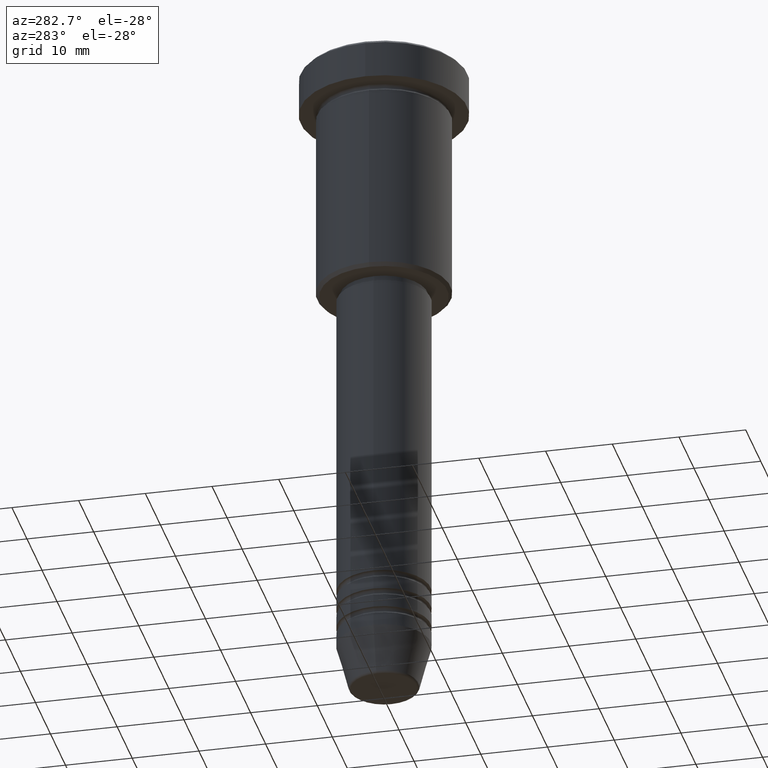
[diagram: clean part render]
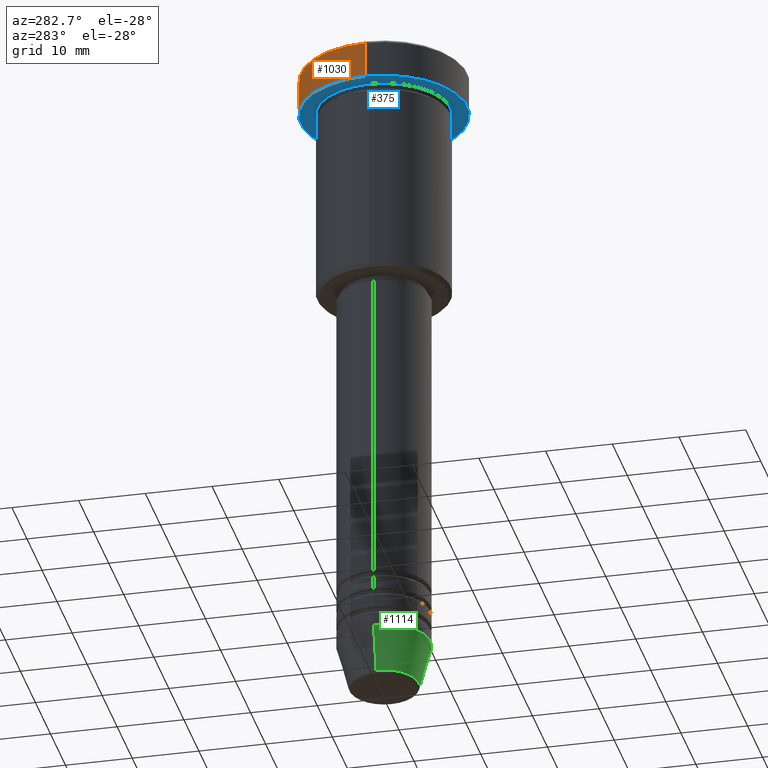
[diagram: same view with three faces highlighted in distinct colors, each labeled with its STEP entity id]
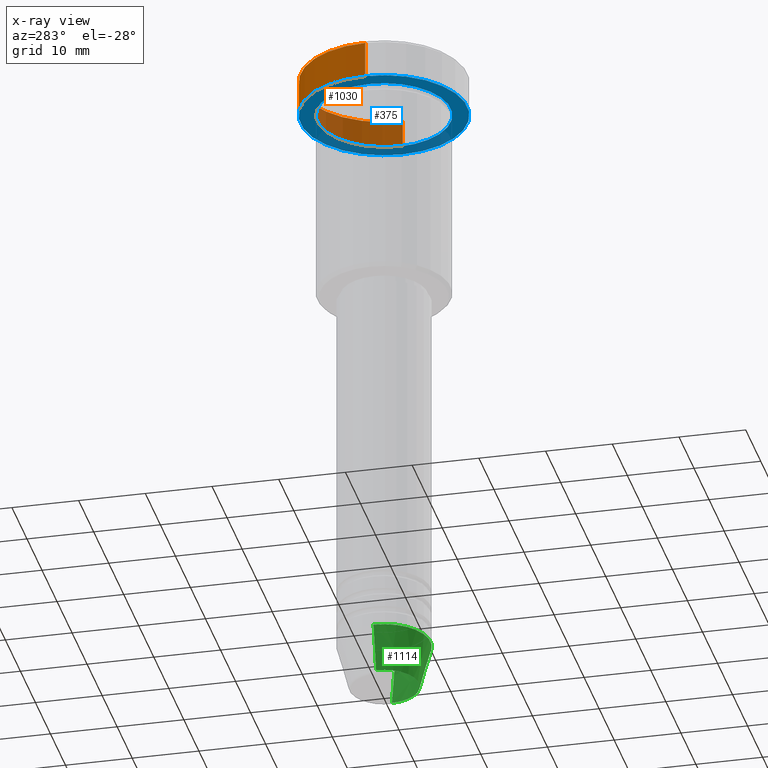
[diagram: x-ray of the same camera — body ghosted, the three highlighted faces saturated]
A machine part, auxiliary view with three faces highlighted in distinct colors.
The next image is the same camera in x-ray (body ghosted, the three faces saturated) — at least one of them is partly hidden behind the body in this view.
Their STEP definitions:

[orange] entity #1030 — the highlighted cylindrical surface (partial cylindrical patch) has radius 12.5 mm, axis along (-0, -0, 1).
#93 = CARTESIAN_POINT ( 'NONE',  ( -12.50000000000000000, 1.530808498934191521E-15, 0.000000000000000000 ) ) ;
#98 = EDGE_CURVE ( 'NONE', #290, #1017, #447, .T. ) ;
#142 = VECTOR ( 'NONE', #1110, 1000.000000000000000 ) ;
#171 = DIRECTION ( 'NONE',  ( -0.000000000000000000, -0.000000000000000000, 1.000000000000000000 ) ) ;
#186 = CARTESIAN_POINT ( 'NONE',  ( -12.50000000000000000, 1.530808498934191521E-15, -5.999999999999996447 ) ) ;
#198 = CIRCLE ( 'NONE', #254, 12.50000000000000000 ) ;
#254 = AXIS2_PLACEMENT_3D ( 'NONE', #497, #768, #319 ) ;
#268 = AXIS2_PLACEMENT_3D ( 'NONE', #1163, #1081, #510 ) ;
#281 = VECTOR ( 'NONE', #171, 1000.000000000000000 ) ;
#287 = AXIS2_PLACEMENT_3D ( 'NONE', #414, #505, #867 ) ;
#290 = VERTEX_POINT ( 'NONE', #551 ) ;
#319 = DIRECTION ( 'NONE',  ( 1.000000000000000000, 0.000000000000000000, 0.000000000000000000 ) ) ;
#392 = ORIENTED_EDGE ( 'NONE', *, *, #911, .T. ) ;
#414 = CARTESIAN_POINT ( 'NONE',  ( 0.000000000000000000, 0.000000000000000000, -5.999999999999996447 ) ) ;
#447 = LINE ( 'NONE', #892, #281 ) ;
#463 = ORIENTED_EDGE ( 'NONE', *, *, #869, .T. ) ;
#497 = CARTESIAN_POINT ( 'NONE',  ( 0.000000000000000000, 0.000000000000000000, -0.5000000000000056621 ) ) ;
#505 = DIRECTION ( 'NONE',  ( -0.000000000000000000, -0.000000000000000000, 1.000000000000000000 ) ) ;
#510 = DIRECTION ( 'NONE',  ( 1.000000000000000000, 0.000000000000000000, 0.000000000000000000 ) ) ;
#522 = FACE_OUTER_BOUND ( 'NONE', #870, .T. ) ;
#551 = CARTESIAN_POINT ( 'NONE',  ( 12.50000000000000000, 0.000000000000000000, -5.999999999999996447 ) ) ;
#562 = ORIENTED_EDGE ( 'NONE', *, *, #98, .F. ) ;
#744 = LINE ( 'NONE', #93, #142 ) ;
#745 = VERTEX_POINT ( 'NONE', #186 ) ;
#753 = CARTESIAN_POINT ( 'NONE',  ( -12.50000000000000000, 1.530808498934191521E-15, -0.5000000000000056621 ) ) ;
#754 = EDGE_CURVE ( 'NONE', #745, #930, #744, .T. ) ;
#768 = DIRECTION ( 'NONE',  ( 0.000000000000000000, 0.000000000000000000, -1.000000000000000000 ) ) ;
#867 = DIRECTION ( 'NONE',  ( 1.000000000000000000, 0.000000000000000000, 0.000000000000000000 ) ) ;
#869 = EDGE_CURVE ( 'NONE', #290, #745, #1152, .T. ) ;
#870 = EDGE_LOOP ( 'NONE', ( #463, #1059, #392, #562 ) ) ;
#892 = CARTESIAN_POINT ( 'NONE',  ( 12.50000000000000000, 0.000000000000000000, 0.000000000000000000 ) ) ;
#911 = EDGE_CURVE ( 'NONE', #930, #1017, #198, .T. ) ;
#930 = VERTEX_POINT ( 'NONE', #753 ) ;
#972 = CYLINDRICAL_SURFACE ( 'NONE', #268, 12.50000000000000000 ) ;
#1017 = VERTEX_POINT ( 'NONE', #1073 ) ;
#1030 = ADVANCED_FACE ( 'NONE', ( #522 ), #972, .T. ) ;
#1059 = ORIENTED_EDGE ( 'NONE', *, *, #754, .T. ) ;
#1073 = CARTESIAN_POINT ( 'NONE',  ( 12.50000000000000000, 0.000000000000000000, -0.5000000000000056621 ) ) ;
#1081 = DIRECTION ( 'NONE',  ( -0.000000000000000000, -0.000000000000000000, 1.000000000000000000 ) ) ;
#1110 = DIRECTION ( 'NONE',  ( -0.000000000000000000, -0.000000000000000000, 1.000000000000000000 ) ) ;
#1152 = CIRCLE ( 'NONE', #287, 12.50000000000000000 ) ;
#1163 = CARTESIAN_POINT ( 'NONE',  ( 0.000000000000000000, 0.000000000000000000, 0.000000000000000000 ) ) ;

[blue] entity #375 — the highlighted planar face has unit normal (0, 0, -1).
#9 = CARTESIAN_POINT ( 'NONE',  ( 0.000000000000000000, 0.000000000000000000, -5.999999999999996447 ) ) ;
#45 = AXIS2_PLACEMENT_3D ( 'NONE', #826, #1019, #362 ) ;
#57 = VERTEX_POINT ( 'NONE', #1083 ) ;
#149 = CARTESIAN_POINT ( 'NONE',  ( -10.00000000000000000, 0.000000000000000000, -5.999999999999996447 ) ) ;
#176 = EDGE_CURVE ( 'NONE', #57, #846, #421, .T. ) ;
#186 = CARTESIAN_POINT ( 'NONE',  ( -12.50000000000000000, 1.530808498934191521E-15, -5.999999999999996447 ) ) ;
#218 = CIRCLE ( 'NONE', #881, 12.50000000000000000 ) ;
#261 = DIRECTION ( 'NONE',  ( -1.000000000000000000, 0.000000000000000000, 0.000000000000000000 ) ) ;
#287 = AXIS2_PLACEMENT_3D ( 'NONE', #414, #505, #867 ) ;
#290 = VERTEX_POINT ( 'NONE', #551 ) ;
#330 = ORIENTED_EDGE ( 'NONE', *, *, #1143, .T. ) ;
#362 = DIRECTION ( 'NONE',  ( -1.000000000000000000, 0.000000000000000000, 0.000000000000000000 ) ) ;
#375 = ADVANCED_FACE ( 'NONE', ( #755, #578 ), #415, .T. ) ;
#414 = CARTESIAN_POINT ( 'NONE',  ( 0.000000000000000000, 0.000000000000000000, -5.999999999999996447 ) ) ;
#415 = PLANE ( 'NONE',  #641 ) ;
#421 = CIRCLE ( 'NONE', #913, 10.00000000000000000 ) ;
#425 = ORIENTED_EDGE ( 'NONE', *, *, #1100, .F. ) ;
#505 = DIRECTION ( 'NONE',  ( -0.000000000000000000, -0.000000000000000000, 1.000000000000000000 ) ) ;
#514 = ORIENTED_EDGE ( 'NONE', *, *, #869, .F. ) ;
#551 = CARTESIAN_POINT ( 'NONE',  ( 12.50000000000000000, 0.000000000000000000, -5.999999999999996447 ) ) ;
#578 = FACE_OUTER_BOUND ( 'NONE', #1008, .T. ) ;
#597 = DIRECTION ( 'NONE',  ( 0.000000000000000000, 0.000000000000000000, -1.000000000000000000 ) ) ;
#618 = CARTESIAN_POINT ( 'NONE',  ( 0.000000000000000000, 0.000000000000000000, -5.999999999999996447 ) ) ;
#641 = AXIS2_PLACEMENT_3D ( 'NONE', #1058, #597, #663 ) ;
#663 = DIRECTION ( 'NONE',  ( -1.000000000000000000, 0.000000000000000000, -0.000000000000000000 ) ) ;
#723 = DIRECTION ( 'NONE',  ( 1.000000000000000000, 0.000000000000000000, 0.000000000000000000 ) ) ;
#745 = VERTEX_POINT ( 'NONE', #186 ) ;
#755 = FACE_BOUND ( 'NONE', #770, .T. ) ;
#770 = EDGE_LOOP ( 'NONE', ( #330, #838 ) ) ;
#826 = CARTESIAN_POINT ( 'NONE',  ( 0.000000000000000000, 0.000000000000000000, -5.999999999999996447 ) ) ;
#838 = ORIENTED_EDGE ( 'NONE', *, *, #176, .T. ) ;
#846 = VERTEX_POINT ( 'NONE', #149 ) ;
#867 = DIRECTION ( 'NONE',  ( 1.000000000000000000, 0.000000000000000000, 0.000000000000000000 ) ) ;
#869 = EDGE_CURVE ( 'NONE', #290, #745, #1152, .T. ) ;
#881 = AXIS2_PLACEMENT_3D ( 'NONE', #9, #1102, #723 ) ;
#913 = AXIS2_PLACEMENT_3D ( 'NONE', #618, #1167, #261 ) ;
#1008 = EDGE_LOOP ( 'NONE', ( #514, #425 ) ) ;
#1019 = DIRECTION ( 'NONE',  ( -0.000000000000000000, -0.000000000000000000, 1.000000000000000000 ) ) ;
#1058 = CARTESIAN_POINT ( 'NONE',  ( 0.000000000000000000, 12.50000000000000000, -5.999999999999996447 ) ) ;
#1083 = CARTESIAN_POINT ( 'NONE',  ( 10.00000000000000000, 1.224646799147353256E-15, -5.999999999999996447 ) ) ;
#1100 = EDGE_CURVE ( 'NONE', #745, #290, #218, .T. ) ;
#1102 = DIRECTION ( 'NONE',  ( -0.000000000000000000, -0.000000000000000000, 1.000000000000000000 ) ) ;
#1143 = EDGE_CURVE ( 'NONE', #846, #57, #1153, .T. ) ;
#1152 = CIRCLE ( 'NONE', #287, 12.50000000000000000 ) ;
#1153 = CIRCLE ( 'NONE', #45, 10.00000000000000000 ) ;
#1167 = DIRECTION ( 'NONE',  ( -0.000000000000000000, -0.000000000000000000, 1.000000000000000000 ) ) ;

[green] entity #1114 — the highlighted conical surface has half-angle 15 deg.
#27 = EDGE_CURVE ( 'NONE', #940, #278, #965, .T. ) ;
#103 = CARTESIAN_POINT ( 'NONE',  ( 0.000000000000000000, 0.000000000000000000, -94.00000000000000000 ) ) ;
#129 = EDGE_CURVE ( 'NONE', #1112, #328, #339, .T. ) ;
#197 = DIRECTION ( 'NONE',  ( -0.000000000000000000, -0.000000000000000000, 1.000000000000000000 ) ) ;
#200 = CARTESIAN_POINT ( 'NONE',  ( 7.000000000000000000, 0.000000000000000000, -94.00000000000000000 ) ) ;
#278 = VERTEX_POINT ( 'NONE', #200 ) ;
#291 = EDGE_CURVE ( 'NONE', #328, #278, #1103, .T. ) ;
#304 = CARTESIAN_POINT ( 'NONE',  ( 5.223655072137187716, 0.000000000000000000, -100.6294095225512706 ) ) ;
#312 = ORIENTED_EDGE ( 'NONE', *, *, #525, .T. ) ;
#323 = VECTOR ( 'NONE', #357, 1000.000000000000000 ) ;
#328 = VERTEX_POINT ( 'NONE', #909 ) ;
#339 = LINE ( 'NONE', #1076, #323 ) ;
#340 = VECTOR ( 'NONE', #1044, 1000.000000000000000 ) ;
#357 = DIRECTION ( 'NONE',  ( -0.2588190451025214056, 3.169619151431772953E-17, 0.9659258262890680902 ) ) ;
#381 = CONICAL_SURFACE ( 'NONE', #980, 7.000000000000000000, 0.2617993877991501295 ) ;
#398 = CIRCLE ( 'NONE', #422, 5.223655072137187716 ) ;
#422 = AXIS2_PLACEMENT_3D ( 'NONE', #436, #527, #706 ) ;
#436 = CARTESIAN_POINT ( 'NONE',  ( 0.000000000000000000, 0.000000000000000000, -100.6294095225512706 ) ) ;
#437 = AXIS2_PLACEMENT_3D ( 'NONE', #103, #1095, #922 ) ;
#464 = FACE_OUTER_BOUND ( 'NONE', #1002, .T. ) ;
#525 = EDGE_CURVE ( 'NONE', #1112, #940, #398, .T. ) ;
#527 = DIRECTION ( 'NONE',  ( -0.000000000000000000, -0.000000000000000000, 1.000000000000000000 ) ) ;
#655 = ORIENTED_EDGE ( 'NONE', *, *, #291, .F. ) ;
#676 = CARTESIAN_POINT ( 'NONE',  ( 7.000000000000000000, 0.000000000000000000, -94.00000000000000000 ) ) ;
#706 = DIRECTION ( 'NONE',  ( 1.000000000000000000, 0.000000000000000000, 0.000000000000000000 ) ) ;
#716 = CARTESIAN_POINT ( 'NONE',  ( 0.000000000000000000, 0.000000000000000000, -94.00000000000000000 ) ) ;
#909 = CARTESIAN_POINT ( 'NONE',  ( -7.000000000000000000, 8.572527594031473190E-16, -94.00000000000000000 ) ) ;
#919 = DIRECTION ( 'NONE',  ( 1.000000000000000000, 0.000000000000000000, 0.000000000000000000 ) ) ;
#922 = DIRECTION ( 'NONE',  ( 1.000000000000000000, 0.000000000000000000, 0.000000000000000000 ) ) ;
#940 = VERTEX_POINT ( 'NONE', #304 ) ;
#943 = ORIENTED_EDGE ( 'NONE', *, *, #27, .T. ) ;
#965 = LINE ( 'NONE', #676, #340 ) ;
#980 = AXIS2_PLACEMENT_3D ( 'NONE', #716, #197, #919 ) ;
#1002 = EDGE_LOOP ( 'NONE', ( #1033, #312, #943, #655 ) ) ;
#1033 = ORIENTED_EDGE ( 'NONE', *, *, #129, .F. ) ;
#1044 = DIRECTION ( 'NONE',  ( 0.2588190451025214056, 0.000000000000000000, 0.9659258262890680902 ) ) ;
#1076 = CARTESIAN_POINT ( 'NONE',  ( -7.000000000000000000, 8.572527594031473190E-16, -94.00000000000000000 ) ) ;
#1092 = CARTESIAN_POINT ( 'NONE',  ( -5.223655072137187716, 7.484830028987059188E-16, -100.6294095225512706 ) ) ;
#1095 = DIRECTION ( 'NONE',  ( -0.000000000000000000, -0.000000000000000000, 1.000000000000000000 ) ) ;
#1103 = CIRCLE ( 'NONE', #437, 7.000000000000000000 ) ;
#1112 = VERTEX_POINT ( 'NONE', #1092 ) ;
#1114 = ADVANCED_FACE ( 'NONE', ( #464 ), #381, .T. ) ;